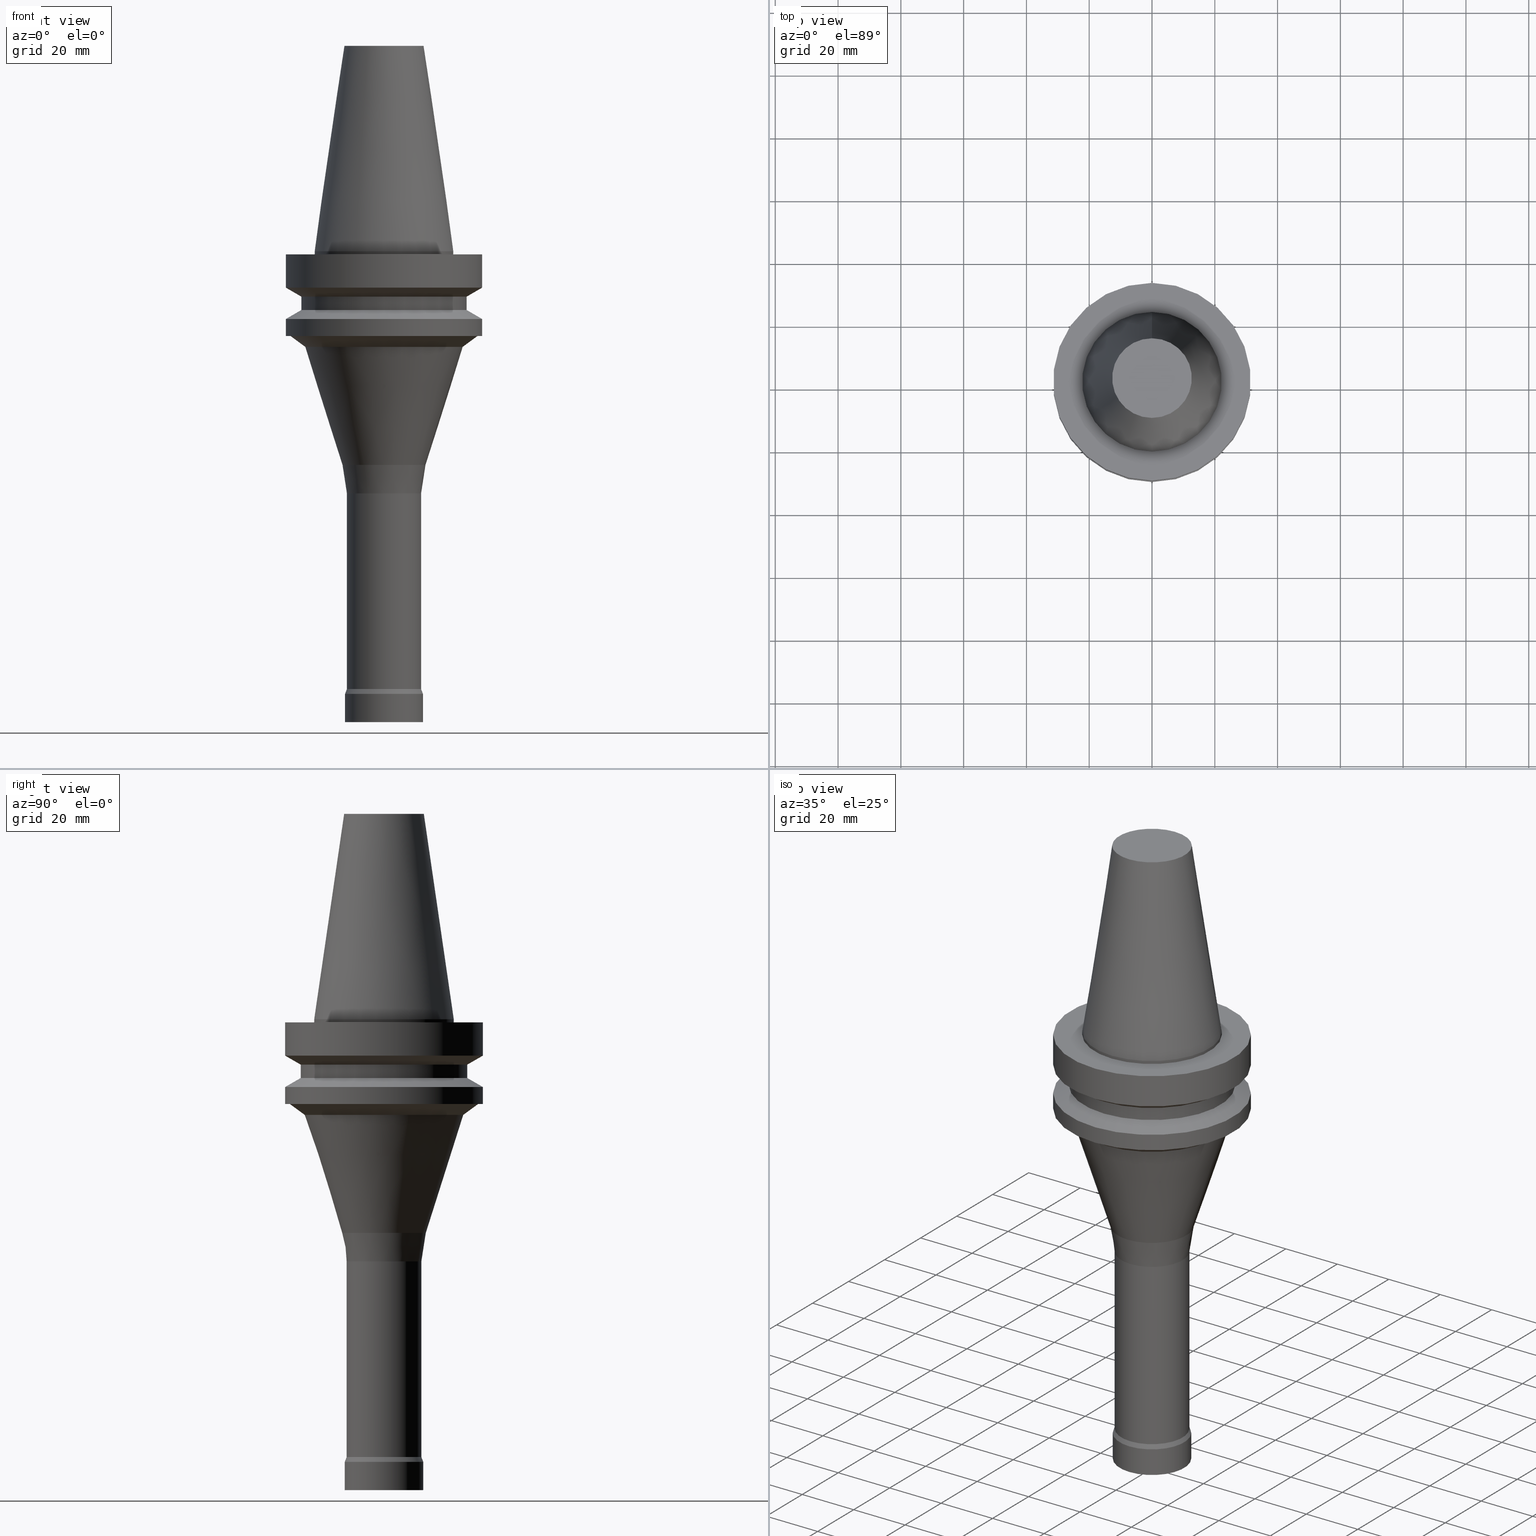
[diagram: canonical four-view strip — front | top / right | iso, engineering-drawing reading convention]
A machine part, canonical four-view strip (front | top / right | iso — engineering-drawing reading convention). The complete STEP part file that produces these views, byte-faithful:
ISO-10303-21;
HEADER;
FILE_DESCRIPTION((''),'1');
FILE_NAME('//Big_tech03/bigt/Translate/21_\X2\8F2A90ED7DDA\X0\-DXF/71_\X2\5207524A5DE55177\X0\/01_\X2\30A830F330C930DF30EB52A05DE5\X0\/01_\X2\30D530EB30AB30C330C830DF30EB\X0\ FCM/BBT/BBT40/BBT40-FCM25092L-150.stp','2012-05-30T02:29:16',(''),(''),'Spatial Interop R18','Kubotek KeyCreator V8.5.1 (14335)',' ');
FILE_SCHEMA(('CONFIG_CONTROL_DESIGN'));
ENDSEC;
DATA;
#1=DESIGN_CONTEXT('',#27,'design');
#2=APPLICATION_PROTOCOL_DEFINITION('INTERNATIONAL STANDARD','config_control_design',1994,#27);
#3=PRODUCT_CATEGORY_RELATIONSHIP('NONE','NONE',#28,#29);
#4=DATE_AND_TIME(#30,#31);
#5=DATE_TIME_ROLE('creation_date');
#6=DATE_TIME_ROLE('classification_date');
#7=PERSON_AND_ORGANIZATION_ROLE('creator');
#8=PERSON_AND_ORGANIZATION_ROLE('design_supplier');
#9=PERSON_AND_ORGANIZATION_ROLE('classification_officer');
#10=PERSON_AND_ORGANIZATION_ROLE('design_owner');
#11=APPROVAL_PERSON_ORGANIZATION(#32,#33,#34);
#12=APPROVAL_DATE_TIME(#4,#33);
#13=CC_DESIGN_APPROVAL(#33,(#35,#36,#37));
#14=CC_DESIGN_DATE_AND_TIME_ASSIGNMENT(#4,#5,(#37));
#15=CC_DESIGN_DATE_AND_TIME_ASSIGNMENT(#4,#6,(#35));
#16=CC_DESIGN_PERSON_AND_ORGANIZATION_ASSIGNMENT(#32,#10,(#38));
#17=CC_DESIGN_PERSON_AND_ORGANIZATION_ASSIGNMENT(#32,#7,(#37));
#18=CC_DESIGN_PERSON_AND_ORGANIZATION_ASSIGNMENT(#32,#7,(#36));
#19=CC_DESIGN_PERSON_AND_ORGANIZATION_ASSIGNMENT(#32,#8,(#36));
#20=CC_DESIGN_SECURITY_CLASSIFICATION(#35,(#36));
#21=CC_DESIGN_PERSON_AND_ORGANIZATION_ASSIGNMENT(#32,#9,(#35));
#22=SHAPE_DEFINITION_REPRESENTATION(#39,#40);
#23= (GEOMETRIC_REPRESENTATION_CONTEXT(3)GLOBAL_UNCERTAINTY_ASSIGNED_CONTEXT((#43))GLOBAL_UNIT_ASSIGNED_CONTEXT((#45,#46,#47))REPRESENTATION_CONTEXT('NONE','WORKSPACE'));
#27=APPLICATION_CONTEXT('CONFIGURATION CONTROLLED 3D DESIGNS OF MECHANICAL PARTS AND ASSEMBLIES');
#28=PRODUCT_CATEGORY('part','NONE');
#29=PRODUCT_RELATED_PRODUCT_CATEGORY('detail',' ',(#38));
#30=CALENDAR_DATE(2012,30,4);
#31=LOCAL_TIME(11,29,16.0,#49);
#32=PERSON_AND_ORGANIZATION(#50,#51);
#33=APPROVAL(#52,'SOLID MODEL');
#34=APPROVAL_ROLE('APPROVED');
#35=SECURITY_CLASSIFICATION('','',#53);
#36=PRODUCT_DEFINITION_FORMATION_WITH_SPECIFIED_SOURCE(' ','NONE',#38,.NOT_KNOWN.);
#37=PRODUCT_DEFINITION('NONE','NONE',#36,#1);
#38=PRODUCT('1','1','PART-1-DESC',(#54));
#39=PRODUCT_DEFINITION_SHAPE('NONE','NONE',#37);
#40=ADVANCED_BREP_SHAPE_REPRESENTATION('1',(#55,#56),#23);
#43=UNCERTAINTY_MEASURE_WITH_UNIT(LENGTH_MEASURE(1.0E-006),#45,'','');
#45= (CONVERSION_BASED_UNIT('MILLIMETRE',#59)LENGTH_UNIT()NAMED_UNIT(#62));
#46= (NAMED_UNIT(#64)PLANE_ANGLE_UNIT()SI_UNIT($,.RADIAN.));
#47= (NAMED_UNIT(#64)SOLID_ANGLE_UNIT()SI_UNIT($,.STERADIAN.));
#49=COORDINATED_UNIVERSAL_TIME_OFFSET(9,0,.AHEAD.);
#50=PERSON('','UNSPECIFIED',$,$,$,$);
#51=ORGANIZATION('UNSPECIFIED','UNSPECIFIED','UNSPECIFIED');
#52=APPROVAL_STATUS('approved');
#53=SECURITY_CLASSIFICATION_LEVEL('unclassified');
#54=MECHANICAL_CONTEXT('',#27,'mechanical');
#55=MANIFOLD_SOLID_BREP('1',#70);
#56=AXIS2_PLACEMENT_3D('',#71,#72,#73);
#59=LENGTH_MEASURE_WITH_UNIT(LENGTH_MEASURE(1.0),#74);
#62=DIMENSIONAL_EXPONENTS(1.0,0.0,0.0,0.0,0.0,0.0,0.0);
#64=DIMENSIONAL_EXPONENTS(0.0,0.0,0.0,0.0,0.0,0.0,0.0);
#70=CLOSED_SHELL('',(#75,#76,#77,#78,#79,#80,#81,#82,#83,#84,#85,#86,#87,#88,#89,#90,#91));
#71=CARTESIAN_POINT('',(0.0,0.0,0.0));
#72=DIRECTION('',(0.0,0.0,1.0));
#73=DIRECTION('',(1.0,0.0,0.0));
#74= (NAMED_UNIT(#62)LENGTH_UNIT()SI_UNIT(.MILLI.,.METRE.));
#75=ADVANCED_FACE('',(#93),#94,.T.);
#76=ADVANCED_FACE('',(#95,#96),#97,.T.);
#77=ADVANCED_FACE('',(#98,#99),#100,.T.);
#78=ADVANCED_FACE('',(#101,#102),#103,.T.);
#79=ADVANCED_FACE('',(#104,#105),#106,.T.);
#80=ADVANCED_FACE('',(#107,#108),#109,.T.);
#81=ADVANCED_FACE('',(#110,#111),#112,.T.);
#82=ADVANCED_FACE('',(#113,#114),#115,.T.);
#83=ADVANCED_FACE('',(#116,#117),#118,.T.);
#84=ADVANCED_FACE('',(#119,#120),#121,.T.);
#85=ADVANCED_FACE('',(#122,#123),#124,.T.);
#86=ADVANCED_FACE('',(#125,#126),#127,.T.);
#87=ADVANCED_FACE('',(#128,#129),#130,.T.);
#88=ADVANCED_FACE('',(#131,#132),#133,.T.);
#89=ADVANCED_FACE('',(#134,#135),#136,.T.);
#90=ADVANCED_FACE('',(#137),#138,.T.);
#91=ADVANCED_FACE('',(#139,#140),#141,.T.);
#93=FACE_OUTER_BOUND('',#142,.T.);
#94=PLANE('',#143);
#95=FACE_BOUND('',#144,.T.);
#96=FACE_BOUND('',#145,.T.);
#97=CONICAL_SURFACE('',#146,17.4562500026599,0.144812498159292);
#98=FACE_OUTER_BOUND('',#147,.T.);
#99=FACE_BOUND('',#148,.T.);
#100=PLANE('',#149);
#101=FACE_BOUND('',#150,.T.);
#102=FACE_BOUND('',#151,.T.);
#103=CYLINDRICAL_SURFACE('',#152,31.5);
#104=FACE_BOUND('',#153,.T.);
#105=FACE_BOUND('',#154,.T.);
#106=CONICAL_SURFACE('',#155,29.0,1.04719755058882);
#107=FACE_BOUND('',#156,.T.);
#108=FACE_BOUND('',#157,.T.);
#109=CYLINDRICAL_SURFACE('',#158,26.5);
#110=FACE_BOUND('',#159,.T.);
#111=FACE_BOUND('',#160,.T.);
#112=CONICAL_SURFACE('',#161,29.0,1.04719755058882);
#113=FACE_BOUND('',#162,.T.);
#114=FACE_BOUND('',#163,.T.);
#115=CYLINDRICAL_SURFACE('',#164,31.5);
#116=FACE_BOUND('',#165,.T.);
#117=FACE_OUTER_BOUND('',#166,.T.);
#118=PLANE('',#167);
#119=FACE_BOUND('',#168,.T.);
#120=FACE_BOUND('',#169,.T.);
#121=CONICAL_SURFACE('',#170,27.61713947,0.939063940538338);
#122=FACE_BOUND('',#171,.T.);
#123=FACE_BOUND('',#172,.T.);
#124=CONICAL_SURFACE('',#173,19.2699763012688,0.307331552844406);
#125=FACE_BOUND('',#174,.T.);
#126=FACE_BOUND('',#175,.T.);
#127=CONICAL_SURFACE('',#176,12.6028368312688,0.15366577651657);
#128=FACE_BOUND('',#177,.T.);
#129=FACE_BOUND('',#178,.T.);
#130=CYLINDRICAL_SURFACE('',#179,11.9);
#131=FACE_BOUND('',#180,.T.);
#132=FACE_BOUND('',#181,.T.);
#133=CONICAL_SURFACE('',#182,12.2,0.369443267706022);
#134=FACE_BOUND('',#183,.T.);
#135=FACE_BOUND('',#184,.T.);
#136=CYLINDRICAL_SURFACE('',#185,12.5);
#137=FACE_OUTER_BOUND('',#186,.T.);
#138=PLANE('',#187);
#139=FACE_BOUND('',#188,.T.);
#140=FACE_BOUND('',#189,.T.);
#141=CYLINDRICAL_SURFACE('',#190,22.225);
#142=EDGE_LOOP('',(#191));
#143=AXIS2_PLACEMENT_3D('',#192,#193,#194);
#144=EDGE_LOOP('',(#195));
#145=EDGE_LOOP('',(#196));
#146=AXIS2_PLACEMENT_3D('',#197,#198,#199);
#147=EDGE_LOOP('',(#200));
#148=EDGE_LOOP('',(#201));
#149=AXIS2_PLACEMENT_3D('',#202,#203,#204);
#150=EDGE_LOOP('',(#205));
#151=EDGE_LOOP('',(#206));
#152=AXIS2_PLACEMENT_3D('',#207,#208,#209);
#153=EDGE_LOOP('',(#210));
#154=EDGE_LOOP('',(#211));
#155=AXIS2_PLACEMENT_3D('',#212,#213,#214);
#156=EDGE_LOOP('',(#215));
#157=EDGE_LOOP('',(#216));
#158=AXIS2_PLACEMENT_3D('',#217,#218,#219);
#159=EDGE_LOOP('',(#220));
#160=EDGE_LOOP('',(#221));
#161=AXIS2_PLACEMENT_3D('',#222,#223,#224);
#162=EDGE_LOOP('',(#225));
#163=EDGE_LOOP('',(#226));
#164=AXIS2_PLACEMENT_3D('',#227,#228,#229);
#165=EDGE_LOOP('',(#230));
#166=EDGE_LOOP('',(#231));
#167=AXIS2_PLACEMENT_3D('',#232,#233,#234);
#168=EDGE_LOOP('',(#235));
#169=EDGE_LOOP('',(#236));
#170=AXIS2_PLACEMENT_3D('',#237,#238,#239);
#171=EDGE_LOOP('',(#240));
#172=EDGE_LOOP('',(#241));
#173=AXIS2_PLACEMENT_3D('',#242,#243,#244);
#174=EDGE_LOOP('',(#245));
#175=EDGE_LOOP('',(#246));
#176=AXIS2_PLACEMENT_3D('',#247,#248,#249);
#177=EDGE_LOOP('',(#250));
#178=EDGE_LOOP('',(#251));
#179=AXIS2_PLACEMENT_3D('',#252,#253,#254);
#180=EDGE_LOOP('',(#255));
#181=EDGE_LOOP('',(#256));
#182=AXIS2_PLACEMENT_3D('',#257,#258,#259);
#183=EDGE_LOOP('',(#260));
#184=EDGE_LOOP('',(#261));
#185=AXIS2_PLACEMENT_3D('',#262,#263,#264);
#186=EDGE_LOOP('',(#265));
#187=AXIS2_PLACEMENT_3D('',#266,#267,#268);
#188=EDGE_LOOP('',(#269));
#189=EDGE_LOOP('',(#270));
#190=AXIS2_PLACEMENT_3D('',#271,#272,#273);
#191=ORIENTED_EDGE('',*,*,#274,.F.);
#192=CARTESIAN_POINT('',(-4.00459503321185E-015,6.34375000265984,65.4));
#193=DIRECTION('',(-6.12323399573677E-017,-1.22464679914735E-016,1.0));
#194=DIRECTION('',(1.23259516440783E-032,-1.0,-1.22464679914735E-016));
#195=ORIENTED_EDGE('',*,*,#275,.F.);
#196=ORIENTED_EDGE('',*,*,#274,.T.);
#197=CARTESIAN_POINT('',(-2.00229751660592E-015,-4.00459503321184E-015,32.7));
#198=DIRECTION('',(6.12323399573677E-017,1.22464679914735E-016,-1.0));
#199=DIRECTION('',(-1.23259516440783E-032,1.0,1.22464679914735E-016));
#200=ORIENTED_EDGE('',*,*,#276,.F.);
#201=ORIENTED_EDGE('',*,*,#277,.T.);
#202=CARTESIAN_POINT('',(6.12323399573673E-017,26.8625,-0.999999999999997));
#203=DIRECTION('',(-6.12323399573677E-017,-1.22464679914735E-016,1.0));
#204=DIRECTION('',(1.23259516440783E-032,-1.0,-1.22464679914735E-016));
#205=ORIENTED_EDGE('',*,*,#278,.F.);
#206=ORIENTED_EDGE('',*,*,#276,.T.);
#207=CARTESIAN_POINT('',(3.85763741731416E-016,7.71527483462832E-016,-6.3));
#208=DIRECTION('',(-6.12323399573677E-017,-1.22464679914735E-016,1.0));
#209=DIRECTION('',(-1.23259516440783E-032,1.0,1.22464679914735E-016));
#210=ORIENTED_EDGE('',*,*,#279,.F.);
#211=ORIENTED_EDGE('',*,*,#278,.T.);
#212=CARTESIAN_POINT('',(7.9867641352326E-016,1.59735282704652E-015,-13.043375675));
#213=DIRECTION('',(-6.12323399573677E-017,-1.22464679914735E-016,1.0));
#214=DIRECTION('',(-1.23259516440783E-032,1.0,1.22464679914735E-016));
#215=ORIENTED_EDGE('',*,*,#280,.F.);
#216=ORIENTED_EDGE('',*,*,#279,.T.);
#217=CARTESIAN_POINT('',(1.0164568432923E-015,2.03291368658461E-015,-16.6));
#218=DIRECTION('',(-6.12323399573677E-017,-1.22464679914735E-016,1.0));
#219=DIRECTION('',(-1.23259516440783E-032,1.0,1.22464679914735E-016));
#220=ORIENTED_EDGE('',*,*,#281,.F.);
#221=ORIENTED_EDGE('',*,*,#280,.T.);
#222=CARTESIAN_POINT('',(1.23423727306135E-015,2.46847454612269E-015,-20.156624325));
#223=DIRECTION('',(6.12323399573677E-017,1.22464679914735E-016,-1.0));
#224=DIRECTION('',(-1.23259516440783E-032,1.0,1.22464679914735E-016));
#225=ORIENTED_EDGE('',*,*,#282,.F.);
#226=ORIENTED_EDGE('',*,*,#281,.T.);
#227=CARTESIAN_POINT('',(1.48794586096403E-015,2.97589172192807E-015,-24.3));
#228=DIRECTION('',(-6.12323399573677E-017,-1.22464679914735E-016,1.0));
#229=DIRECTION('',(-1.23259516440783E-032,1.0,1.22464679914735E-016));
#230=ORIENTED_EDGE('',*,*,#283,.F.);
#231=ORIENTED_EDGE('',*,*,#282,.T.);
#232=CARTESIAN_POINT('',(1.65327317884893E-015,30.75,-27.0));
#233=DIRECTION('',(6.12323399573677E-017,1.22464679914735E-016,-1.0));
#234=DIRECTION('',(-1.23259516440783E-032,1.0,1.22464679914735E-016));
#235=ORIENTED_EDGE('',*,*,#284,.F.);
#236=ORIENTED_EDGE('',*,*,#283,.T.);
#237=CARTESIAN_POINT('',(1.76004457612557E-015,3.52008915225114E-015,-28.743709245));
#238=DIRECTION('',(-6.12323399573677E-017,-1.22464679914735E-016,1.0));
#239=DIRECTION('',(-1.23259516440783E-032,1.0,1.22464679914735E-016));
#240=ORIENTED_EDGE('',*,*,#285,.F.);
#241=ORIENTED_EDGE('',*,*,#284,.T.);
#242=CARTESIAN_POINT('',(3.01748483449384E-015,6.03496966898767E-015,-49.279267076756));
#243=DIRECTION('',(-6.12323399573677E-017,-1.22464679914735E-016,1.0));
#244=DIRECTION('',(-1.23259516440783E-032,1.0,1.22464679914735E-016));
#245=ORIENTED_EDGE('',*,*,#286,.F.);
#246=ORIENTED_EDGE('',*,*,#285,.T.);
#247=CARTESIAN_POINT('',(4.4460104102601E-015,8.89202082052019E-015,-72.608860176756));
#248=DIRECTION('',(-6.12323399573677E-017,-1.22464679914735E-016,1.0));
#249=DIRECTION('',(-1.23259516440783E-032,1.0,1.22464679914735E-016));
#250=ORIENTED_EDGE('',*,*,#287,.F.);
#251=ORIENTED_EDGE('',*,*,#286,.T.);
#252=CARTESIAN_POINT('',(6.63137391246491E-015,1.32627478249298E-014,-108.298554605));
#253=DIRECTION('',(-6.12323399573677E-017,-1.22464679914735E-016,1.0));
#254=DIRECTION('',(-1.23259516440783E-032,1.0,1.22464679914735E-016));
#255=ORIENTED_EDGE('',*,*,#288,.F.);
#256=ORIENTED_EDGE('',*,*,#287,.T.);
#257=CARTESIAN_POINT('',(8.58632031699196E-015,1.71726406339839E-014,-140.22525226));
#258=DIRECTION('',(6.12323399573677E-017,1.22464679914735E-016,-1.0));
#259=DIRECTION('',(-1.23259516440783E-032,1.0,1.22464679914735E-016));
#260=ORIENTED_EDGE('',*,*,#289,.F.);
#261=ORIENTED_EDGE('',*,*,#288,.T.);
#262=CARTESIAN_POINT('',(8.90930546379699E-015,1.7818610927594E-014,-145.5));
#263=DIRECTION('',(-6.12323399573677E-017,-1.22464679914735E-016,1.0));
#264=DIRECTION('',(-1.23259516440783E-032,1.0,1.22464679914735E-016));
#265=ORIENTED_EDGE('',*,*,#289,.T.);
#266=CARTESIAN_POINT('',(9.18485099360515E-015,6.25000000000002,-150.0));
#267=DIRECTION('',(6.12323399573677E-017,1.22464679914735E-016,-1.0));
#268=DIRECTION('',(-1.23259516440783E-032,1.0,1.22464679914735E-016));
#269=ORIENTED_EDGE('',*,*,#277,.F.);
#270=ORIENTED_EDGE('',*,*,#275,.T.);
#271=CARTESIAN_POINT('',(3.06161699786837E-017,6.12323399573674E-017,-0.499999999999998));
#272=DIRECTION('',(-6.12323399573677E-017,-1.22464679914735E-016,1.0));
#273=DIRECTION('',(-1.23259516440783E-032,1.0,1.22464679914735E-016));
#274=EDGE_CURVE('',#290,#290,#291,.T.);
#275=EDGE_CURVE('',#292,#292,#293,.T.);
#276=EDGE_CURVE('',#294,#294,#295,.T.);
#277=EDGE_CURVE('',#296,#296,#297,.T.);
#278=EDGE_CURVE('',#298,#298,#299,.T.);
#279=EDGE_CURVE('',#300,#300,#301,.T.);
#280=EDGE_CURVE('',#302,#302,#303,.T.);
#281=EDGE_CURVE('',#304,#304,#305,.T.);
#282=EDGE_CURVE('',#306,#306,#307,.T.);
#283=EDGE_CURVE('',#308,#308,#309,.T.);
#284=EDGE_CURVE('',#310,#310,#311,.T.);
#285=EDGE_CURVE('',#312,#312,#313,.T.);
#286=EDGE_CURVE('',#314,#314,#315,.T.);
#287=EDGE_CURVE('',#316,#316,#317,.T.);
#288=EDGE_CURVE('',#318,#318,#319,.T.);
#289=EDGE_CURVE('',#320,#320,#321,.T.);
#290=VERTEX_POINT('',#322);
#291=CIRCLE('',#323,12.6875000053197);
#292=VERTEX_POINT('',#324);
#293=CIRCLE('',#325,22.225);
#294=VERTEX_POINT('',#326);
#295=CIRCLE('',#327,31.5);
#296=VERTEX_POINT('',#328);
#297=CIRCLE('',#329,22.225);
#298=VERTEX_POINT('',#330);
#299=CIRCLE('',#331,31.5);
#300=VERTEX_POINT('',#332);
#301=CIRCLE('',#333,26.5);
#302=VERTEX_POINT('',#334);
#303=CIRCLE('',#335,26.5);
#304=VERTEX_POINT('',#336);
#305=CIRCLE('',#337,31.5);
#306=VERTEX_POINT('',#338);
#307=CIRCLE('',#339,31.5);
#308=VERTEX_POINT('',#340);
#309=CIRCLE('',#341,30.0);
#310=VERTEX_POINT('',#342);
#311=CIRCLE('',#343,25.23427894);
#312=VERTEX_POINT('',#344);
#313=CIRCLE('',#345,13.3056736625376);
#314=VERTEX_POINT('',#346);
#315=CIRCLE('',#347,11.9);
#316=VERTEX_POINT('',#348);
#317=CIRCLE('',#349,11.9);
#318=VERTEX_POINT('',#350);
#319=CIRCLE('',#351,12.5);
#320=VERTEX_POINT('',#352);
#321=CIRCLE('',#353,12.5);
#322=CARTESIAN_POINT('',(-4.00459503321185E-015,12.6875000053197,65.4));
#323=AXIS2_PLACEMENT_3D('',#354,#355,#356);
#324=CARTESIAN_POINT('',(-4.94380699136164E-031,22.225,6.32177751110499E-015));
#325=AXIS2_PLACEMENT_3D('',#357,#358,#359);
#326=CARTESIAN_POINT('',(6.12323399573673E-017,31.5,-0.999999999999996));
#327=AXIS2_PLACEMENT_3D('',#360,#361,#362);
#328=CARTESIAN_POINT('',(6.12323399573674E-017,22.225,-0.999999999999997));
#329=AXIS2_PLACEMENT_3D('',#363,#364,#365);
#330=CARTESIAN_POINT('',(7.10295143505464E-016,31.5,-11.6));
#331=AXIS2_PLACEMENT_3D('',#366,#367,#368);
#332=CARTESIAN_POINT('',(8.87057683541055E-016,26.5,-14.48675135));
#333=AXIS2_PLACEMENT_3D('',#369,#370,#371);
#334=CARTESIAN_POINT('',(1.14585600304355E-015,26.5,-18.71324865));
#335=AXIS2_PLACEMENT_3D('',#372,#373,#374);
#336=CARTESIAN_POINT('',(1.32261854307914E-015,31.5,-21.6));
#337=AXIS2_PLACEMENT_3D('',#375,#376,#377);
#338=CARTESIAN_POINT('',(1.65327317884893E-015,31.5,-27.0));
#339=AXIS2_PLACEMENT_3D('',#378,#379,#380);
#340=CARTESIAN_POINT('',(1.65327317884893E-015,30.0,-27.0));
#341=AXIS2_PLACEMENT_3D('',#381,#382,#383);
#342=CARTESIAN_POINT('',(1.86681597340222E-015,25.23427894,-30.48741849));
#343=AXIS2_PLACEMENT_3D('',#384,#385,#386);
#344=CARTESIAN_POINT('',(4.16815369558546E-015,13.3056736625376,-68.071115663512));
#345=AXIS2_PLACEMENT_3D('',#387,#388,#389);
#346=CARTESIAN_POINT('',(4.72386712493473E-015,11.9,-77.14660469));
#347=AXIS2_PLACEMENT_3D('',#390,#391,#392);
#348=CARTESIAN_POINT('',(8.53888069999508E-015,11.9,-139.45050452));
#349=AXIS2_PLACEMENT_3D('',#393,#394,#395);
#350=CARTESIAN_POINT('',(8.63375993398884E-015,12.5,-141.0));
#351=AXIS2_PLACEMENT_3D('',#396,#397,#398);
#352=CARTESIAN_POINT('',(9.18485099360515E-015,12.5,-150.0));
#353=AXIS2_PLACEMENT_3D('',#399,#400,#401);
#354=CARTESIAN_POINT('',(-4.00459503321185E-015,-8.00919006642369E-015,65.4));
#355=DIRECTION('',(6.12323399573677E-017,1.22464679914735E-016,-1.0));
#356=DIRECTION('',(-1.23259516440783E-032,1.0,1.22464679914735E-016));
#357=CARTESIAN_POINT('',(-2.20435498841458E-031,-4.40870997682916E-031,3.59998489352087E-015));
#358=DIRECTION('',(6.12323399573677E-017,1.22464679914735E-016,-1.0));
#359=DIRECTION('',(-1.23259516440783E-032,1.0,1.22464679914735E-016));
#360=CARTESIAN_POINT('',(6.12323399573677E-017,1.22464679914735E-016,-1.0));
#361=DIRECTION('',(6.12323399573677E-017,1.22464679914735E-016,-1.0));
#362=DIRECTION('',(-1.23259516440783E-032,1.0,1.22464679914735E-016));
#363=CARTESIAN_POINT('',(6.12323399573677E-017,1.22464679914735E-016,-1.0));
#364=DIRECTION('',(6.12323399573677E-017,1.22464679914735E-016,-1.0));
#365=DIRECTION('',(-1.23259516440783E-032,1.0,1.22464679914735E-016));
#366=CARTESIAN_POINT('',(7.10295143505465E-016,1.42059028701093E-015,-11.6));
#367=DIRECTION('',(6.12323399573677E-017,1.22464679914735E-016,-1.0));
#368=DIRECTION('',(-1.23259516440783E-032,1.0,1.22464679914735E-016));
#369=CARTESIAN_POINT('',(8.87057683541055E-016,1.77411536708211E-015,-14.48675135));
#370=DIRECTION('',(6.12323399573677E-017,1.22464679914735E-016,-1.0));
#371=DIRECTION('',(-1.23259516440783E-032,1.0,1.22464679914735E-016));
#372=CARTESIAN_POINT('',(1.14585600304355E-015,2.2917120060871E-015,-18.71324865));
#373=DIRECTION('',(6.12323399573677E-017,1.22464679914735E-016,-1.0));
#374=DIRECTION('',(-1.23259516440783E-032,1.0,1.22464679914735E-016));
#375=CARTESIAN_POINT('',(1.32261854307914E-015,2.64523708615828E-015,-21.6));
#376=DIRECTION('',(6.12323399573677E-017,1.22464679914735E-016,-1.0));
#377=DIRECTION('',(-1.23259516440783E-032,1.0,1.22464679914735E-016));
#378=CARTESIAN_POINT('',(1.65327317884893E-015,3.30654635769785E-015,-27.0));
#379=DIRECTION('',(6.12323399573677E-017,1.22464679914735E-016,-1.0));
#380=DIRECTION('',(-1.23259516440783E-032,1.0,1.22464679914735E-016));
#381=CARTESIAN_POINT('',(1.65327317884893E-015,3.30654635769785E-015,-27.0));
#382=DIRECTION('',(6.12323399573677E-017,1.22464679914735E-016,-1.0));
#383=DIRECTION('',(-1.23259516440783E-032,1.0,1.22464679914735E-016));
#384=CARTESIAN_POINT('',(1.86681597340222E-015,3.73363194680443E-015,-30.48741849));
#385=DIRECTION('',(6.12323399573677E-017,1.22464679914735E-016,-1.0));
#386=DIRECTION('',(-1.23259516440783E-032,1.0,1.22464679914735E-016));
#387=CARTESIAN_POINT('',(4.16815369558546E-015,8.33630739117092E-015,-68.071115663512));
#388=DIRECTION('',(6.12323399573677E-017,1.22464679914735E-016,-1.0));
#389=DIRECTION('',(-1.23259516440783E-032,1.0,1.22464679914735E-016));
#390=CARTESIAN_POINT('',(4.72386712493473E-015,9.44773424986947E-015,-77.14660469));
#391=DIRECTION('',(6.12323399573677E-017,1.22464679914735E-016,-1.0));
#392=DIRECTION('',(-1.23259516440783E-032,1.0,1.22464679914735E-016));
#393=CARTESIAN_POINT('',(8.53888069999508E-015,1.70777613999901E-014,-139.45050452));
#394=DIRECTION('',(6.12323399573677E-017,1.22464679914735E-016,-1.0));
#395=DIRECTION('',(-1.23259516440783E-032,1.0,1.22464679914735E-016));
#396=CARTESIAN_POINT('',(8.63375993398884E-015,1.72675198679777E-014,-141.0));
#397=DIRECTION('',(6.12323399573677E-017,1.22464679914735E-016,-1.0));
#398=DIRECTION('',(-1.23259516440783E-032,1.0,1.22464679914735E-016));
#399=CARTESIAN_POINT('',(9.18485099360515E-015,1.83697019872103E-014,-150.0));
#400=DIRECTION('',(6.12323399573677E-017,1.22464679914735E-016,-1.0));
#401=DIRECTION('',(-1.23259516440783E-032,1.0,1.22464679914735E-016));
ENDSEC;
END-ISO-10303-21;
